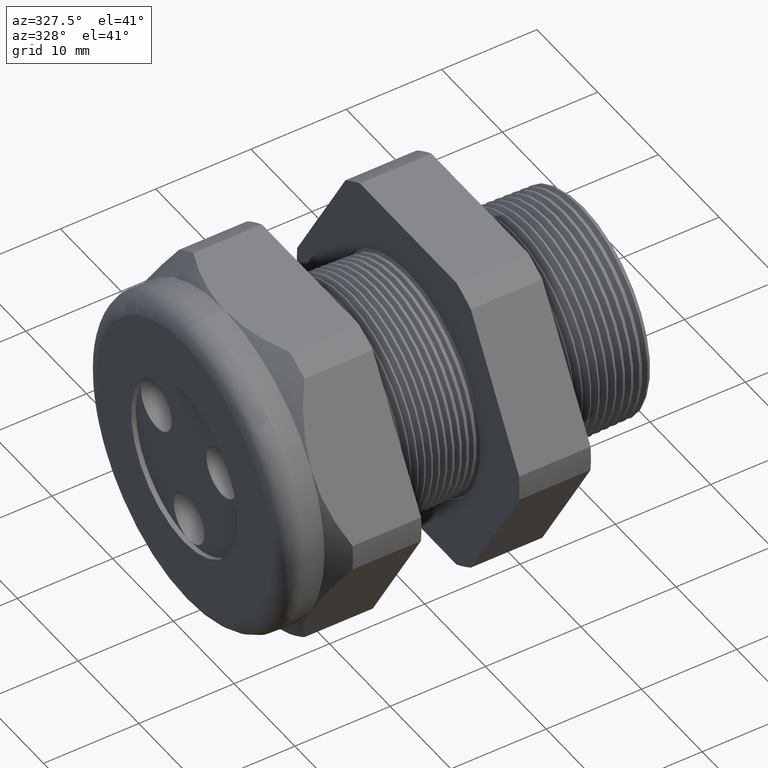
[diagram: clean part render]
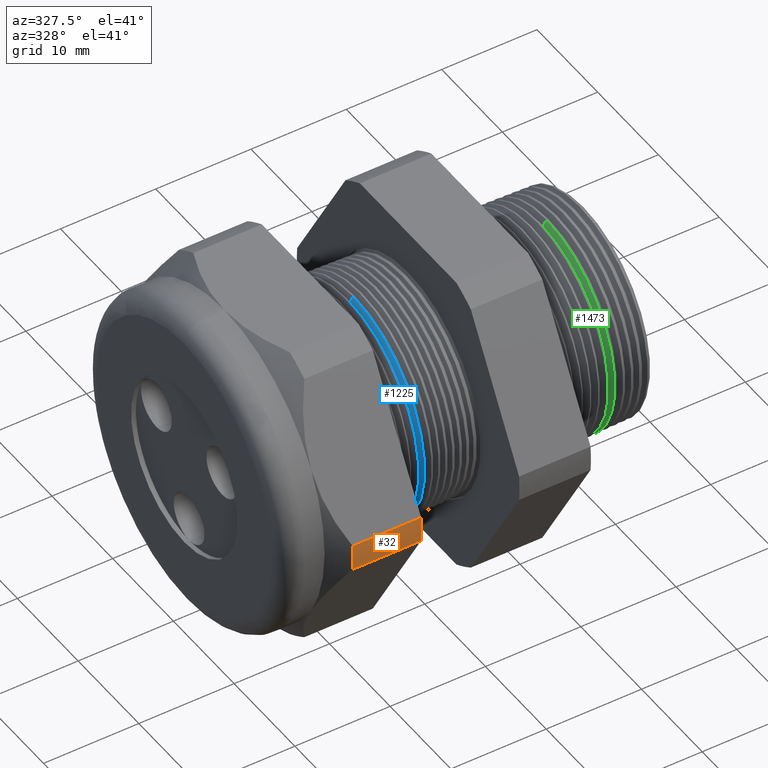
[diagram: same view with three faces highlighted in distinct colors, each labeled with its STEP entity id]
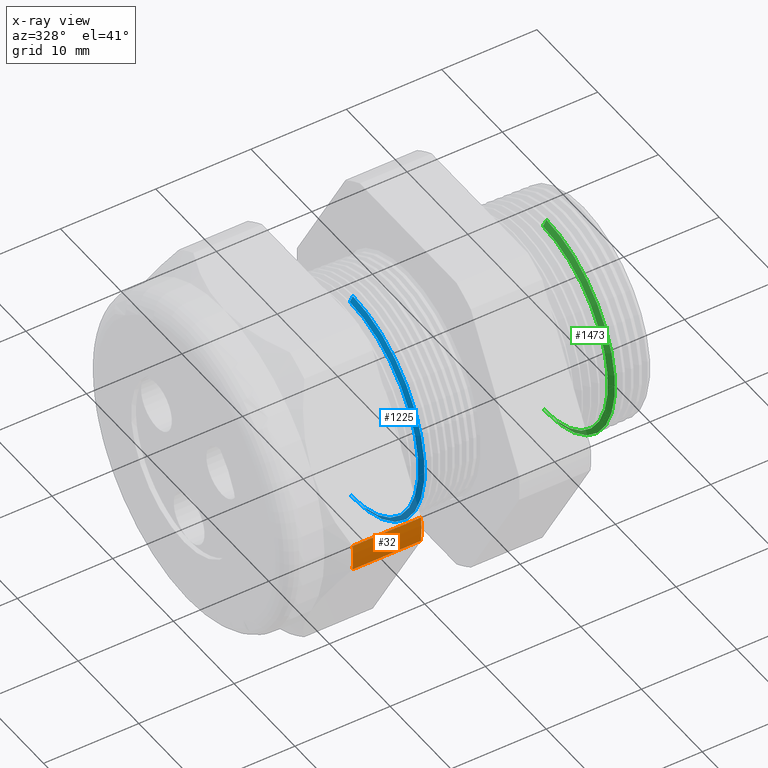
[diagram: x-ray of the same camera — body ghosted, the three highlighted faces saturated]
A machine part, auxiliary view with three faces highlighted in distinct colors.
The next image is the same camera in x-ray (body ghosted, the three faces saturated) — at least one of them is partly hidden behind the body in this view.
Their STEP definitions:

[orange] entity #32 — the highlighted cylindrical surface (partial cylindrical patch) has radius 18.3261 mm, axis along (-1, 0, 0).
#25 = ORIENTED_EDGE ( 'NONE', *, *, #83, .T. ) ;
#31 = EDGE_LOOP ( 'NONE', ( #25, #88, #5597, #5592 ) ) ;
#32 = ADVANCED_FACE ( 'NONE', ( #1741 ), #1740, .T. ) ;
#82 = VERTEX_POINT ( 'NONE', #1886 ) ;
#83 = EDGE_CURVE ( 'NONE', #86, #82, #1881, .T. ) ;
#86 = VERTEX_POINT ( 'NONE', #1877 ) ;
#87 = EDGE_CURVE ( 'NONE', #82, #5562, #1876, .T. ) ;
#88 = ORIENTED_EDGE ( 'NONE', *, *, #87, .T. ) ;
#1735 = DIRECTION ( 'NONE',  ( 0.0000000000000000000, 0.0000000000000000000, 1.000000000000000000 ) ) ;
#1736 = DIRECTION ( 'NONE',  ( -1.000000000000000000, 0.0000000000000000000, 0.0000000000000000000 ) ) ;
#1737 = CARTESIAN_POINT ( 'NONE',  ( 0.1200000000000000900, 0.0000000000000000000, 0.0000000000000000000 ) ) ;
#1738 = AXIS2_PLACEMENT_3D ( 'NONE', #1737, #1736, #1735 ) ;
#1740 = CYLINDRICAL_SURFACE ( 'NONE', #1738, 0.7215000000000000300 ) ;
#1741 = FACE_OUTER_BOUND ( 'NONE', #31, .T. ) ;
#1871 = DIRECTION ( 'NONE',  ( 0.0000000000000000000, 0.0000000000000000000, -1.000000000000000000 ) ) ;
#1872 = DIRECTION ( 'NONE',  ( 1.000000000000000000, 0.0000000000000000000, 0.0000000000000000000 ) ) ;
#1873 = CARTESIAN_POINT ( 'NONE',  ( -1.293145669291338600, 0.0000000000000000000, 0.0000000000000000000 ) ) ;
#1874 = AXIS2_PLACEMENT_3D ( 'NONE', #1873, #1872, #1871 ) ;
#1876 = CIRCLE ( 'NONE', #1874, 0.7215000000000000300 ) ;
#1877 = CARTESIAN_POINT ( 'NONE',  ( -1.010314960629921100, -0.7194909755756819800, 0.05380507471562025900 ) ) ;
#1878 = DIRECTION ( 'NONE',  ( -1.000000000000000000, 0.0000000000000000000, 0.0000000000000000000 ) ) ;
#1879 = VECTOR ( 'NONE', #1878, 39.37007874015748100 ) ;
#1880 = CARTESIAN_POINT ( 'NONE',  ( 0.1200000000000000900, -0.7194909755756819800, 0.05380507471562025900 ) ) ;
#1881 = LINE ( 'NONE', #1880, #1879 ) ;
#1886 = CARTESIAN_POINT ( 'NONE',  ( -1.293145669291338600, -0.7194909755756819800, 0.05380507471562022400 ) ) ;
#5093 = CARTESIAN_POINT ( 'NONE',  ( -1.010314960629921100, -0.7194909755756819800, -0.05380507471562082100 ) ) ;
#5124 = DIRECTION ( 'NONE',  ( -1.000000000000000000, 0.0000000000000000000, 0.0000000000000000000 ) ) ;
#5125 = VECTOR ( 'NONE', #5124, 39.37007874015748100 ) ;
#5126 = CARTESIAN_POINT ( 'NONE',  ( 0.1200000000000000900, -0.7194909755756819800, -0.05380507471562082100 ) ) ;
#5127 = LINE ( 'NONE', #5126, #5125 ) ;
#5143 = CARTESIAN_POINT ( 'NONE',  ( -1.293145669291338600, -0.7194909755756819800, -0.05380507471562082100 ) ) ;
#5201 = DIRECTION ( 'NONE',  ( 0.0000000000000000000, 0.0000000000000000000, -1.000000000000000000 ) ) ;
#5202 = DIRECTION ( 'NONE',  ( 1.000000000000000000, 0.0000000000000000000, 0.0000000000000000000 ) ) ;
#5203 = CARTESIAN_POINT ( 'NONE',  ( -1.010314960629921100, 0.0000000000000000000, 0.0000000000000000000 ) ) ;
#5204 = AXIS2_PLACEMENT_3D ( 'NONE', #5203, #5202, #5201 ) ;
#5205 = CIRCLE ( 'NONE', #5204, 0.7215000000000000300 ) ;
#5557 = VERTEX_POINT ( 'NONE', #5093 ) ;
#5562 = VERTEX_POINT ( 'NONE', #5143 ) ;
#5564 = EDGE_CURVE ( 'NONE', #5557, #5562, #5127, .T. ) ;
#5592 = ORIENTED_EDGE ( 'NONE', *, *, #5594, .F. ) ;
#5594 = EDGE_CURVE ( 'NONE', #86, #5557, #5205, .T. ) ;
#5597 = ORIENTED_EDGE ( 'NONE', *, *, #5564, .F. ) ;

[blue] entity #1225 — the highlighted conical surface has half-angle 58.5 deg.
#6 = EDGE_CURVE ( 'NONE', #442, #2094, #1710, .T. ) ;
#439 = EDGE_CURVE ( 'NONE', #2106, #442, #2667, .T. ) ;
#442 = VERTEX_POINT ( 'NONE', #2659 ) ;
#1225 = ADVANCED_FACE ( 'NONE', ( #4040 ), #4039, .T. ) ;
#1227 = EDGE_LOOP ( 'NONE', ( #1228, #1282, #1283, #1284 ) ) ;
#1228 = ORIENTED_EDGE ( 'NONE', *, *, #2099, .F. ) ;
#1282 = ORIENTED_EDGE ( 'NONE', *, *, #1300, .T. ) ;
#1283 = ORIENTED_EDGE ( 'NONE', *, *, #439, .T. ) ;
#1284 = ORIENTED_EDGE ( 'NONE', *, *, #6, .T. ) ;
#1300 = EDGE_CURVE ( 'NONE', #2101, #2106, #4140, .T. ) ;
#1707 = DIRECTION ( 'NONE',  ( 0.0000000000000000000, 0.0000000000000000000, -1.000000000000000000 ) ) ;
#1708 = DIRECTION ( 'NONE',  ( -1.000000000000000000, 0.0000000000000000000, 0.0000000000000000000 ) ) ;
#1709 = AXIS2_PLACEMENT_3D ( 'NONE', #1715, #1708, #1707 ) ;
#1710 = CIRCLE ( 'NONE', #1709, 0.4653784827600517800 ) ;
#1715 = CARTESIAN_POINT ( 'NONE',  ( -0.8338263376216125100, 0.0000000000000000000, 0.0000000000000000000 ) ) ;
#2094 = VERTEX_POINT ( 'NONE', #4926 ) ;
#2099 = EDGE_CURVE ( 'NONE', #2101, #2094, #4910, .T. ) ;
#2101 = VERTEX_POINT ( 'NONE', #4905 ) ;
#2106 = VERTEX_POINT ( 'NONE', #4961 ) ;
#2659 = CARTESIAN_POINT ( 'NONE',  ( -0.8338263376216125100, 5.699242693041491200E-017, -0.4653784827600518400 ) ) ;
#2664 = DIRECTION ( 'NONE',  ( 0.5224985647159348100, 0.0000000000000000000, -0.8526401643541007300 ) ) ;
#2665 = VECTOR ( 'NONE', #2664, 39.37007874015748900 ) ;
#2666 = CARTESIAN_POINT ( 'NONE',  ( -0.8465405736958171400, 0.0000000000000000000, -0.4446307351718083400 ) ) ;
#2667 = LINE ( 'NONE', #2666, #2665 ) ;
#4039 = CONICAL_SURFACE ( 'NONE', #4102, 0.4446307351718083400, 1.021017612416699200 ) ;
#4040 = FACE_OUTER_BOUND ( 'NONE', #1227, .T. ) ;
#4044 = CARTESIAN_POINT ( 'NONE',  ( -0.8465405736958171400, 0.0000000000000000000, 0.0000000000000000000 ) ) ;
#4100 = DIRECTION ( 'NONE',  ( 0.0000000000000000000, 0.0000000000000000000, -1.000000000000000000 ) ) ;
#4101 = DIRECTION ( 'NONE',  ( 1.000000000000000000, 0.0000000000000000000, 0.0000000000000000000 ) ) ;
#4102 = AXIS2_PLACEMENT_3D ( 'NONE', #4044, #4101, #4100 ) ;
#4137 = DIRECTION ( 'NONE',  ( 0.0000000000000000000, 0.0000000000000000000, -1.000000000000000000 ) ) ;
#4138 = DIRECTION ( 'NONE',  ( 1.000000000000000000, 0.0000000000000000000, 0.0000000000000000000 ) ) ;
#4139 = AXIS2_PLACEMENT_3D ( 'NONE', #4145, #4138, #4137 ) ;
#4140 = CIRCLE ( 'NONE', #4139, 0.4446307351718083400 ) ;
#4145 = CARTESIAN_POINT ( 'NONE',  ( -0.8465405736958171400, 0.0000000000000000000, 0.0000000000000000000 ) ) ;
#4905 = CARTESIAN_POINT ( 'NONE',  ( -0.8465405736958171400, 0.0000000000000000000, 0.4446307351718083400 ) ) ;
#4907 = DIRECTION ( 'NONE',  ( 0.5224985647159348100, 1.044183048100722500E-016, 0.8526401643541007300 ) ) ;
#4908 = VECTOR ( 'NONE', #4907, 39.37007874015748900 ) ;
#4909 = CARTESIAN_POINT ( 'NONE',  ( -0.8465405736958171400, 5.445156066306895900E-017, 0.4446307351718083400 ) ) ;
#4910 = LINE ( 'NONE', #4909, #4908 ) ;
#4926 = CARTESIAN_POINT ( 'NONE',  ( -0.8338263376216125100, 0.0000000000000000000, 0.4653784827600518400 ) ) ;
#4961 = CARTESIAN_POINT ( 'NONE',  ( -0.8465405736958171400, 5.576099742788561300E-017, -0.4446307351718083400 ) ) ;

[green] entity #1473 — the highlighted conical surface has half-angle 58.5 deg.
#874 = EDGE_CURVE ( 'NONE', #1611, #1609, #3511, .T. ) ;
#1470 = EDGE_CURVE ( 'NONE', #1541, #1540, #4367, .T. ) ;
#1473 = ADVANCED_FACE ( 'NONE', ( #4421 ), #4420, .T. ) ;
#1474 = EDGE_LOOP ( 'NONE', ( #1475, #1476, #1477, #1478 ) ) ;
#1475 = ORIENTED_EDGE ( 'NONE', *, *, #1613, .F. ) ;
#1476 = ORIENTED_EDGE ( 'NONE', *, *, #1470, .T. ) ;
#1477 = ORIENTED_EDGE ( 'NONE', *, *, #1612, .T. ) ;
#1478 = ORIENTED_EDGE ( 'NONE', *, *, #874, .T. ) ;
#1540 = VERTEX_POINT ( 'NONE', #4517 ) ;
#1541 = VERTEX_POINT ( 'NONE', #4516 ) ;
#1609 = VERTEX_POINT ( 'NONE', #4641 ) ;
#1611 = VERTEX_POINT ( 'NONE', #4640 ) ;
#1612 = EDGE_CURVE ( 'NONE', #1540, #1611, #4639, .T. ) ;
#1613 = EDGE_CURVE ( 'NONE', #1541, #1609, #4635, .T. ) ;
#3507 = DIRECTION ( 'NONE',  ( 0.0000000000000000000, 0.0000000000000000000, -1.000000000000000000 ) ) ;
#3508 = DIRECTION ( 'NONE',  ( -1.000000000000000000, 0.0000000000000000000, 0.0000000000000000000 ) ) ;
#3509 = CARTESIAN_POINT ( 'NONE',  ( -0.03424021830932415200, 0.0000000000000000000, 0.0000000000000000000 ) ) ;
#3510 = AXIS2_PLACEMENT_3D ( 'NONE', #3509, #3508, #3507 ) ;
#3511 = CIRCLE ( 'NONE', #3510, 0.4444405833519353700 ) ;
#4367 = CIRCLE ( 'NONE', #4425, 0.4212184895733915900 ) ;
#4415 = DIRECTION ( 'NONE',  ( 0.0000000000000000000, 0.0000000000000000000, -1.000000000000000000 ) ) ;
#4416 = DIRECTION ( 'NONE',  ( 1.000000000000000000, 0.0000000000000000000, 0.0000000000000000000 ) ) ;
#4417 = CARTESIAN_POINT ( 'NONE',  ( -0.04847073567907520000, 0.0000000000000000000, 0.0000000000000000000 ) ) ;
#4418 = AXIS2_PLACEMENT_3D ( 'NONE', #4417, #4416, #4415 ) ;
#4420 = CONICAL_SURFACE ( 'NONE', #4418, 0.4212184895733915900, 1.021017612416699400 ) ;
#4421 = FACE_OUTER_BOUND ( 'NONE', #1474, .T. ) ;
#4422 = DIRECTION ( 'NONE',  ( 0.0000000000000000000, 0.0000000000000000000, -1.000000000000000000 ) ) ;
#4423 = DIRECTION ( 'NONE',  ( 1.000000000000000000, 0.0000000000000000000, 0.0000000000000000000 ) ) ;
#4424 = CARTESIAN_POINT ( 'NONE',  ( -0.04847073567907520000, 0.0000000000000000000, 0.0000000000000000000 ) ) ;
#4425 = AXIS2_PLACEMENT_3D ( 'NONE', #4424, #4423, #4422 ) ;
#4516 = CARTESIAN_POINT ( 'NONE',  ( -0.04847073567907520000, 0.0000000000000000000, 0.4212184895733915900 ) ) ;
#4517 = CARTESIAN_POINT ( 'NONE',  ( -0.04847073567907520000, 5.304998578798863200E-017, -0.4212184895733915900 ) ) ;
#4632 = DIRECTION ( 'NONE',  ( 0.5224985647159347000, 1.044183048100722800E-016, 0.8526401643541008400 ) ) ;
#4633 = VECTOR ( 'NONE', #4632, 39.37007874015748100 ) ;
#4634 = CARTESIAN_POINT ( 'NONE',  ( -0.04847073567907520000, 5.158438749977368000E-017, 0.4212184895733915900 ) ) ;
#4635 = LINE ( 'NONE', #4634, #4633 ) ;
#4636 = DIRECTION ( 'NONE',  ( 0.5224985647159347000, 0.0000000000000000000, -0.8526401643541008400 ) ) ;
#4637 = VECTOR ( 'NONE', #4636, 39.37007874015748100 ) ;
#4638 = CARTESIAN_POINT ( 'NONE',  ( -0.04847073567907520000, 0.0000000000000000000, -0.4212184895733915900 ) ) ;
#4639 = LINE ( 'NONE', #4638, #4637 ) ;
#4640 = CARTESIAN_POINT ( 'NONE',  ( -0.03424021830932415200, 5.442827378131301400E-017, -0.4444405833519353700 ) ) ;
#4641 = CARTESIAN_POINT ( 'NONE',  ( -0.03424021830932415200, 0.0000000000000000000, 0.4444405833519353700 ) ) ;